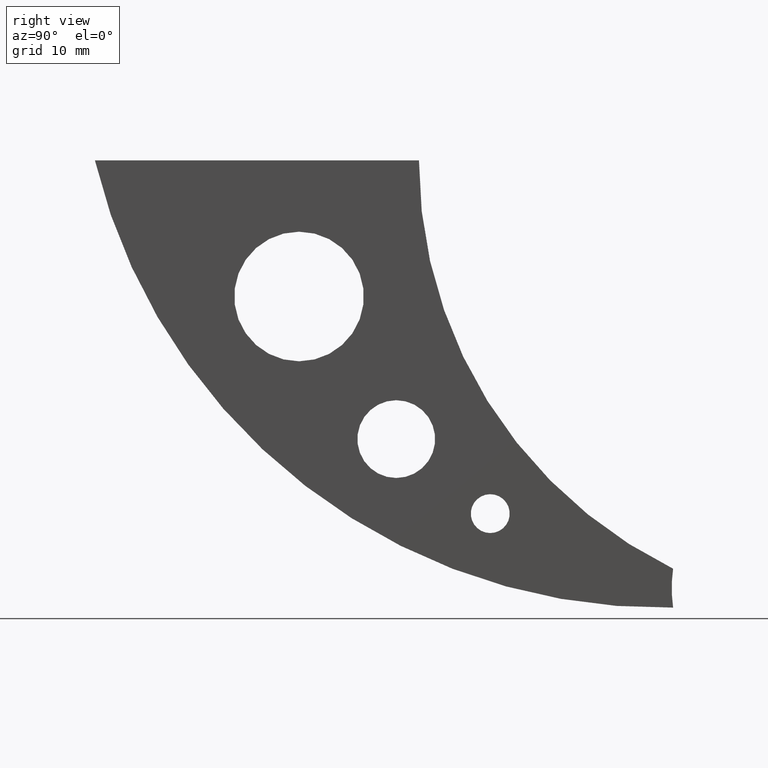
[diagram: clean part render]
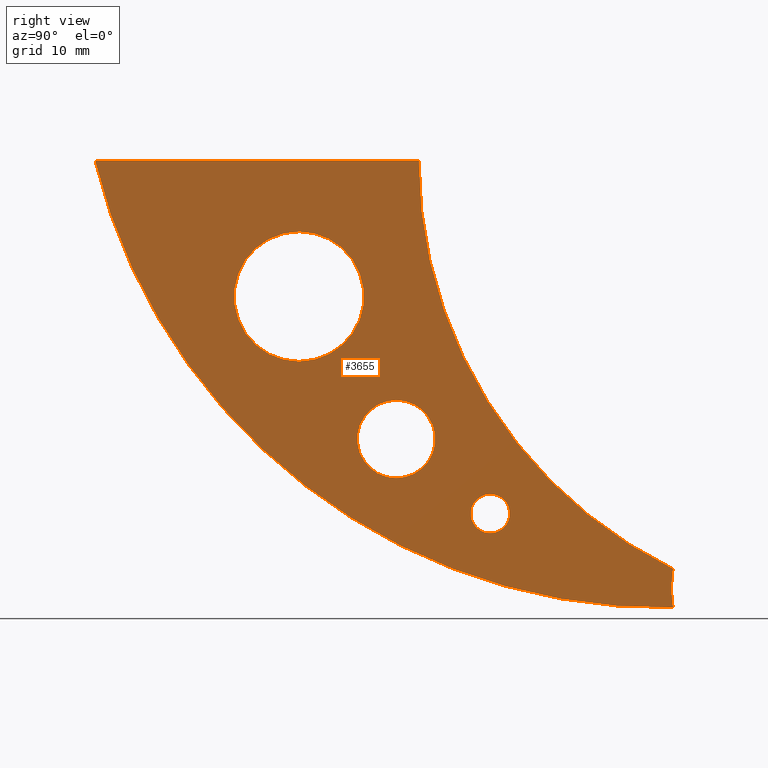
[diagram: same view with one face highlighted and labeled with its STEP entity id]
A machine part, right view. The second image highlights one B-rep face of the part: STEP entity #3655.
In plain terms, the highlighted planar face has unit normal (1, 0, 0).
Its self-contained STEP definition (entity closure, byte-faithful):
#132 = LINE ( 'NONE', #11268, #9704 ) ;
#150 = CARTESIAN_POINT ( 'NONE',  ( 2.000000000000000000, 6.499999999999999112, -21.00000000000000000 ) ) ;
#225 = CIRCLE ( 'NONE', #10692, 2.999999999999995559 ) ;
#232 = CARTESIAN_POINT ( 'NONE',  ( 2.000000000000000000, 25.00000000000000000, 9.184854703111209120E-15 ) ) ;
#256 = VERTEX_POINT ( 'NONE', #6141 ) ;
#313 = DIRECTION ( 'NONE',  ( 0.000000000000000000, 0.000000000000000000, -1.000000000000000000 ) ) ;
#524 = CARTESIAN_POINT ( 'NONE',  ( 2.000000000000000000, 6.500000000000000000, -30.99999999999997868 ) ) ;
#1017 = DIRECTION ( 'NONE',  ( 1.000000000000000000, 0.000000000000000000, 0.000000000000000000 ) ) ;
#1037 = CIRCLE ( 'NONE', #1472, 2.999999999999995559 ) ;
#1082 = ORIENTED_EDGE ( 'NONE', *, *, #1251, .F. ) ;
#1233 = FACE_BOUND ( 'NONE', #12278, .T. ) ;
#1251 = EDGE_CURVE ( 'NONE', #3283, #8802, #4527, .T. ) ;
#1308 = ORIENTED_EDGE ( 'NONE', *, *, #9103, .F. ) ;
#1414 = CARTESIAN_POINT ( 'NONE',  ( 2.000000000000000000, 62.51953627538633640, 20.98405990606523730 ) ) ;
#1450 = CARTESIAN_POINT ( 'NONE',  ( 2.000000000000000000, 94.99987258339398011, -0.1335601310456652202 ) ) ;
#1453 = CARTESIAN_POINT ( 'NONE',  ( 2.000000000000000000, 6.499999999999999112, -11.00000000000002487 ) ) ;
#1472 = AXIS2_PLACEMENT_3D ( 'NONE', #12037, #1017, #9268 ) ;
#1486 = EDGE_CURVE ( 'NONE', #5251, #10383, #2953, .T. ) ;
#1547 = CARTESIAN_POINT ( 'NONE',  ( 2.000000000000000000, 21.50000000000000000, -49.00000000000001421 ) ) ;
#1737 = AXIS2_PLACEMENT_3D ( 'NONE', #6109, #6150, #8171 ) ;
#2150 = ORIENTED_EDGE ( 'NONE', *, *, #6063, .F. ) ;
#2194 = ORIENTED_EDGE ( 'NONE', *, *, #6505, .F. ) ;
#2588 = ORIENTED_EDGE ( 'NONE', *, *, #4643, .F. ) ;
#2683 = AXIS2_PLACEMENT_3D ( 'NONE', #9348, #3418, #8484 ) ;
#2914 = EDGE_CURVE ( 'NONE', #256, #10054, #8976, .T. ) ;
#2953 = CIRCLE ( 'NONE', #10283, 21.19999999999999574 ) ;
#3283 = VERTEX_POINT ( 'NONE', #524 ) ;
#3418 = DIRECTION ( 'NONE',  ( 1.000000000000000000, 0.000000000000000000, 0.000000000000000000 ) ) ;
#3419 = DIRECTION ( 'NONE',  ( -1.000000000000000000, -0.000000000000000000, -0.000000000000000000 ) ) ;
#3547 = DIRECTION ( 'NONE',  ( -1.000000000000000000, -0.000000000000000000, -0.000000000000000000 ) ) ;
#3590 = PLANE ( 'NONE',  #10844 ) ;
#3655 = ADVANCED_FACE ( 'NONE', ( #6014, #12060, #10506, #1233 ), #3590, .T. ) ;
#3826 = AXIS2_PLACEMENT_3D ( 'NONE', #9723, #4853, #11739 ) ;
#4293 = VERTEX_POINT ( 'NONE', #7653 ) ;
#4296 = ORIENTED_EDGE ( 'NONE', *, *, #1486, .T. ) ;
#4527 = CIRCLE ( 'NONE', #3826, 9.999999999999976907 ) ;
#4612 = CIRCLE ( 'NONE', #8361, 69.99999999999998579 ) ;
#4643 = EDGE_CURVE ( 'NONE', #8802, #3283, #5106, .T. ) ;
#4843 = AXIS2_PLACEMENT_3D ( 'NONE', #150, #8038, #9056 ) ;
#4853 = DIRECTION ( 'NONE',  ( 1.000000000000000000, 0.000000000000000000, 0.000000000000000000 ) ) ;
#5067 = DIRECTION ( 'NONE',  ( 0.000000000000000000, 0.000000000000000000, -1.000000000000000000 ) ) ;
#5106 = CIRCLE ( 'NONE', #4843, 9.999999999999976907 ) ;
#5210 = CARTESIAN_POINT ( 'NONE',  ( 2.000000000000000000, 36.00000000000000000, -51.50000000000000711 ) ) ;
#5218 = VERTEX_POINT ( 'NONE', #232 ) ;
#5251 = VERTEX_POINT ( 'NONE', #11058 ) ;
#5286 = EDGE_CURVE ( 'NONE', #4293, #5251, #9117, .T. ) ;
#5489 = CARTESIAN_POINT ( 'NONE',  ( 2.000000000000000000, 85.20000000000000284, -66.00000000000000000 ) ) ;
#5891 = ORIENTED_EDGE ( 'NONE', *, *, #5286, .T. ) ;
#6014 = FACE_BOUND ( 'NONE', #8925, .T. ) ;
#6063 = EDGE_CURVE ( 'NONE', #10189, #7317, #225, .T. ) ;
#6109 = CARTESIAN_POINT ( 'NONE',  ( 2.000000000000000000, 21.50000000000000000, -43.00000000000000000 ) ) ;
#6141 = CARTESIAN_POINT ( 'NONE',  ( 2.000000000000000000, 21.50000000000000000, -36.99999999999997868 ) ) ;
#6150 = DIRECTION ( 'NONE',  ( 1.000000000000000000, 0.000000000000000000, 0.000000000000000000 ) ) ;
#6472 = DIRECTION ( 'NONE',  ( 0.000000000000000000, 0.000000000000000000, -1.000000000000000000 ) ) ;
#6505 = EDGE_CURVE ( 'NONE', #10054, #256, #12434, .T. ) ;
#6809 = DIRECTION ( 'NONE',  ( 1.000000000000000000, 0.000000000000000000, 0.000000000000000000 ) ) ;
#7293 = DIRECTION ( 'NONE',  ( -0.000000000000000000, -1.000000000000000000, -1.836970940622241824E-16 ) ) ;
#7317 = VERTEX_POINT ( 'NONE', #11038 ) ;
#7371 = ORIENTED_EDGE ( 'NONE', *, *, #8794, .T. ) ;
#7653 = CARTESIAN_POINT ( 'NONE',  ( 2.000000000000000000, -25.00000000000000000, 0.000000000000000000 ) ) ;
#7828 = EDGE_LOOP ( 'NONE', ( #2588, #1082 ) ) ;
#7849 = EDGE_LOOP ( 'NONE', ( #9146, #7371, #5891, #4296 ) ) ;
#7884 = AXIS2_PLACEMENT_3D ( 'NONE', #1414, #8340, #313 ) ;
#8038 = DIRECTION ( 'NONE',  ( 1.000000000000000000, 0.000000000000000000, 0.000000000000000000 ) ) ;
#8171 = DIRECTION ( 'NONE',  ( 0.000000000000000000, 0.000000000000000000, -1.000000000000000000 ) ) ;
#8249 = CARTESIAN_POINT ( 'NONE',  ( 2.000000000000000000, 64.21333756882718546, -63.00000000000000000 ) ) ;
#8340 = DIRECTION ( 'NONE',  ( 1.000000000000000000, 0.000000000000000000, 0.000000000000000000 ) ) ;
#8361 = AXIS2_PLACEMENT_3D ( 'NONE', #11365, #3419, #9525 ) ;
#8484 = DIRECTION ( 'NONE',  ( 0.000000000000000000, 0.000000000000000000, -1.000000000000000000 ) ) ;
#8794 = EDGE_CURVE ( 'NONE', #5218, #4293, #132, .T. ) ;
#8802 = VERTEX_POINT ( 'NONE', #1453 ) ;
#8925 = EDGE_LOOP ( 'NONE', ( #10724, #2194 ) ) ;
#8976 = CIRCLE ( 'NONE', #1737, 6.000000000000019540 ) ;
#9056 = DIRECTION ( 'NONE',  ( 0.000000000000000000, 0.000000000000000000, -1.000000000000000000 ) ) ;
#9103 = EDGE_CURVE ( 'NONE', #7317, #10189, #1037, .T. ) ;
#9117 = CIRCLE ( 'NONE', #7884, 90.00000000000000000 ) ;
#9146 = ORIENTED_EDGE ( 'NONE', *, *, #9266, .T. ) ;
#9266 = EDGE_CURVE ( 'NONE', #10383, #5218, #4612, .T. ) ;
#9268 = DIRECTION ( 'NONE',  ( 0.000000000000000000, 0.000000000000000000, -1.000000000000000000 ) ) ;
#9348 = CARTESIAN_POINT ( 'NONE',  ( 2.000000000000000000, 21.50000000000000000, -43.00000000000000000 ) ) ;
#9473 = DIRECTION ( 'NONE',  ( 0.000000000000000000, 0.000000000000000000, -1.000000000000000000 ) ) ;
#9525 = DIRECTION ( 'NONE',  ( 0.000000000000000000, 0.000000000000000000, -1.000000000000000000 ) ) ;
#9704 = VECTOR ( 'NONE', #7293, 1000.000000000000000 ) ;
#9723 = CARTESIAN_POINT ( 'NONE',  ( 2.000000000000000000, 6.499999999999999112, -21.00000000000000000 ) ) ;
#9953 = CARTESIAN_POINT ( 'NONE',  ( 2.000000000000000000, 36.00000000000000000, -54.50000000000000000 ) ) ;
#10054 = VERTEX_POINT ( 'NONE', #1547 ) ;
#10189 = VERTEX_POINT ( 'NONE', #5210 ) ;
#10283 = AXIS2_PLACEMENT_3D ( 'NONE', #5489, #3547, #6472 ) ;
#10383 = VERTEX_POINT ( 'NONE', #8249 ) ;
#10506 = FACE_BOUND ( 'NONE', #7828, .T. ) ;
#10692 = AXIS2_PLACEMENT_3D ( 'NONE', #9953, #6809, #5067 ) ;
#10724 = ORIENTED_EDGE ( 'NONE', *, *, #2914, .F. ) ;
#10844 = AXIS2_PLACEMENT_3D ( 'NONE', #1450, #11398, #9473 ) ;
#11038 = CARTESIAN_POINT ( 'NONE',  ( 2.000000000000000000, 36.00000000000000000, -57.49999999999999289 ) ) ;
#11058 = CARTESIAN_POINT ( 'NONE',  ( 2.000000000000000000, 64.21333756882717125, -69.00000000000000000 ) ) ;
#11268 = CARTESIAN_POINT ( 'NONE',  ( 2.000000000000000000, -25.00000000000000000, 0.000000000000000000 ) ) ;
#11365 = CARTESIAN_POINT ( 'NONE',  ( 2.000000000000000000, 94.99987258339398011, -0.1335601310456652202 ) ) ;
#11398 = DIRECTION ( 'NONE',  ( 1.000000000000000000, 0.000000000000000000, 0.000000000000000000 ) ) ;
#11739 = DIRECTION ( 'NONE',  ( 0.000000000000000000, 0.000000000000000000, -1.000000000000000000 ) ) ;
#12037 = CARTESIAN_POINT ( 'NONE',  ( 2.000000000000000000, 36.00000000000000000, -54.50000000000000000 ) ) ;
#12060 = FACE_OUTER_BOUND ( 'NONE', #7849, .T. ) ;
#12278 = EDGE_LOOP ( 'NONE', ( #2150, #1308 ) ) ;
#12434 = CIRCLE ( 'NONE', #2683, 6.000000000000019540 ) ;